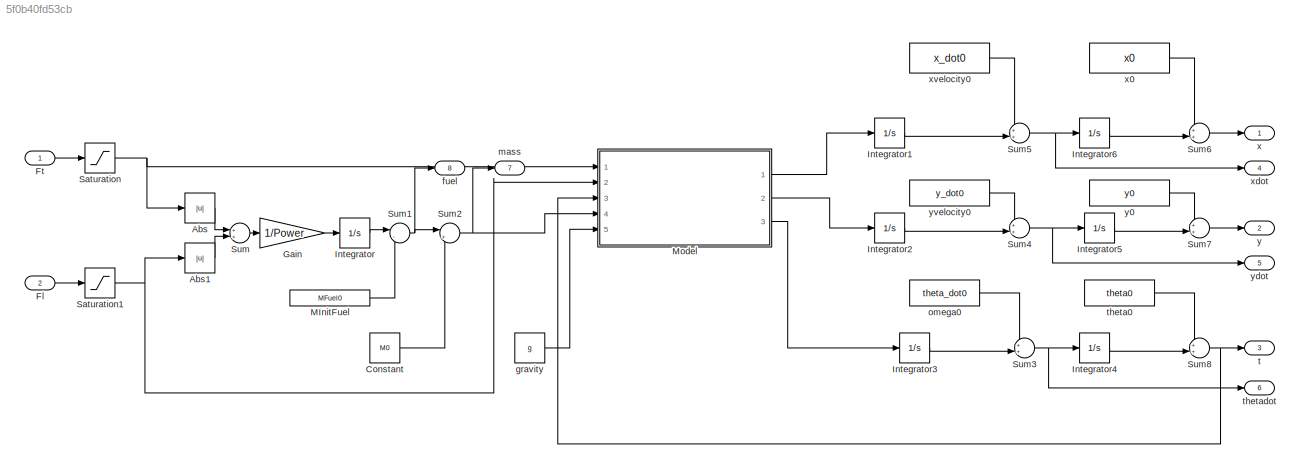
MODEL slx_5f0b40fd53cb
KIND model
CONFIG AbsTol = auto
CONFIG FixedStep = auto
CONFIG MaxStep = auto
CONFIG MinStep = auto
CONFIG RelTol = 1e-3
CONFIG SampleTimeConstraint = Unconstrained
CONFIG Solver = ode45
CONFIG SolverMode = Auto
CONFIG SolverName = ode45
CONFIG StartTime = 0.0
CONFIG StopTime = 10.0
BLOCK [Abs] Abs
  SaturateOnIntegerOverflow = off
BLOCK [Abs] Abs1
  SaturateOnIntegerOverflow = off
BLOCK [Constant] Constant
  Value = M0
BLOCK [Inport] Fl
  IconDisplay = Port number
  Port = 2
BLOCK [Inport] Ft
  IconDisplay = Port number
BLOCK [Gain] Gain
  Gain = 1/Power
  OutDataTypeStr = Inherit: Inherit via internal rule
  ParamDataTypeStr = Inherit: Inherit via internal rule
  SaturateOnIntegerOverflow = off
BLOCK [Integrator] Integrator
  Ports = [1, 1]
BLOCK [Integrator] Integrator1
  Ports = [1, 1]
BLOCK [Integrator] Integrator2
  Ports = [1, 1]
BLOCK [Integrator] Integrator3
  Ports = [1, 1]
BLOCK [Integrator] Integrator4
  Ports = [1, 1]
BLOCK [Integrator] Integrator5
  Ports = [1, 1]
BLOCK [Integrator] Integrator6
  Ports = [1, 1]
BLOCK [Constant] MInitFuel 
  Value = MFuel0
BLOCK [ModelReference] Model
  CopyOfModelName = DinamicaModulo.slx
  DefaultDataLogging = on
  ModelNameDialog = DinamicaModulo.slx
  ModelReferenceVersion = 1.3
  Ports = [5, 3]
BLOCK [Saturate] Saturation
  InputPortMap = u0
  LowerLimit = -MaxFt
  Ports = [1, 1]
  UpperLimit = MaxFt
BLOCK [Saturate] Saturation1
  InputPortMap = u0
  LowerLimit = -MaxFl
  Ports = [1, 1]
  UpperLimit = MaxFl
BLOCK [Sum] Sum
  IconShape = round
  InputSameDT = off
  OutDataTypeStr = Inherit: Inherit via internal rule
  Ports = [2, 1]
  SaturateOnIntegerOverflow = off
BLOCK [Sum] Sum1
  IconShape = round
  InputSameDT = off
  Inputs = |-+
  OutDataTypeStr = Inherit: Inherit via internal rule
  Ports = [2, 1]
  SaturateOnIntegerOverflow = off
BLOCK [Sum] Sum2
  IconShape = round
  InputSameDT = off
  Inputs = |++
  OutDataTypeStr = Inherit: Inherit via internal rule
  Ports = [2, 1]
  SaturateOnIntegerOverflow = off
BLOCK [Sum] Sum3
  IconShape = round
  InputSameDT = off
  Inputs = ++|
  OutDataTypeStr = Inherit: Inherit via internal rule
  Ports = [2, 1]
  SaturateOnIntegerOverflow = off
BLOCK [Sum] Sum4
  IconShape = round
  InputSameDT = off
  Inputs = ++|
  OutDataTypeStr = Inherit: Inherit via internal rule
  Ports = [2, 1]
  SaturateOnIntegerOverflow = off
BLOCK [Sum] Sum5
  IconShape = round
  InputSameDT = off
  Inputs = ++|
  OutDataTypeStr = Inherit: Inherit via internal rule
  Ports = [2, 1]
  SaturateOnIntegerOverflow = off
BLOCK [Sum] Sum6
  IconShape = round
  InputSameDT = off
  Inputs = ++|
  OutDataTypeStr = Inherit: Inherit via internal rule
  Ports = [2, 1]
  SaturateOnIntegerOverflow = off
BLOCK [Sum] Sum7
  IconShape = round
  InputSameDT = off
  Inputs = ++|
  OutDataTypeStr = Inherit: Inherit via internal rule
  Ports = [2, 1]
  SaturateOnIntegerOverflow = off
BLOCK [Sum] Sum8
  IconShape = round
  InputSameDT = off
  Inputs = ++|
  OutDataTypeStr = Inherit: Inherit via internal rule
  Ports = [2, 1]
  SaturateOnIntegerOverflow = off
BLOCK [Outport] fuel 
  IconDisplay = Port number
  Port = 8
BLOCK [Constant] gravity
  Value = g
BLOCK [Outport] mass 
  IconDisplay = Port number
  Port = 7
BLOCK [Constant] omega0
  Value = theta_dot0
BLOCK [Outport] t 
  IconDisplay = Port number
  Port = 3
BLOCK [Constant] theta0
  Value = theta0
BLOCK [Outport] thetadot 
  IconDisplay = Port number
  Port = 6
BLOCK [Outport] x 
  IconDisplay = Port number
BLOCK [Constant] x0
  Value = x0
BLOCK [Outport] xdot 
  IconDisplay = Port number
  Port = 4
BLOCK [Constant] xvelocity0
  Value = x_dot0
BLOCK [Outport] y 
  IconDisplay = Port number
  Port = 2
BLOCK [Constant] y0
  Value = y0
BLOCK [Outport] ydot 
  IconDisplay = Port number
  Port = 5
BLOCK [Constant] yvelocity0
  Value = y_dot0
LINE Abs1:1 -> Sum:2
LINE Abs:1 -> Sum:1
LINE Constant:1 -> Sum2:2
LINE Fl:1 -> Saturation1:1
LINE Ft:1 -> Saturation:1
LINE Gain:1 -> Integrator:1
LINE Integrator1:1 -> Sum5:2
LINE Integrator2:1 -> Sum4:2
LINE Integrator3:1 -> Sum3:2
LINE Integrator4:1 -> Sum8:2
LINE Integrator5:1 -> Sum7:2
LINE Integrator6:1 -> Sum6:2
LINE Integrator:1 -> Sum1:1
LINE MInitFuel :1 -> Sum1:2
LINE Model:1 -> Integrator1:1
LINE Model:2 -> Integrator2:1
LINE Model:3 -> Integrator3:1
NET Saturation1:1 -> Abs1:1, Model:2
NET Saturation:1 -> Abs:1, Model:1
NET Sum1:1 -> Sum2:1, fuel :1
NET Sum2:1 -> Model:4, mass :1
NET Sum3:1 -> Integrator4:1, thetadot :1
NET Sum4:1 -> Integrator5:1, ydot :1
NET Sum5:1 -> Integrator6:1, xdot :1
LINE Sum6:1 -> x :1
LINE Sum7:1 -> y :1
NET Sum8:1 -> Model:3, t :1
LINE Sum:1 -> Gain:1
LINE gravity:1 -> Model:5
LINE omega0:1 -> Sum3:1
LINE theta0:1 -> Sum8:1
LINE x0:1 -> Sum6:1
LINE xvelocity0:1 -> Sum5:1
LINE y0:1 -> Sum7:1
LINE yvelocity0:1 -> Sum4:1
note: NET lines group one-source signal fan-out (src -> all destinations, sorted); 1:1 wires keep LINE
